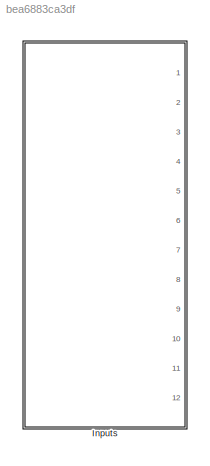
MODEL slx_bea6883ca3df
KIND model
CONFIG AbsTol = auto
CONFIG EnableMultiTasking = off
CONFIG FixedStep = 0.01
CONFIG MaxStep = auto
CONFIG MinStep = auto
CONFIG RelTol = 1e-3
CONFIG SampleTimeConstraint = Unconstrained
CONFIG Solver = FixedStepAuto
CONFIG SolverName = FixedStepAuto
CONFIG StartTime = 0
CONFIG StopTime = 300
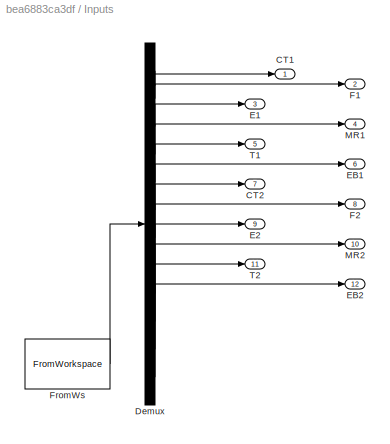
BLOCK [SubSystem] Inputs
  ClipboardFcn = sigbuilder_block('clipboard');
  CloseFcn = sigbuilder_block('close');
  ContinueFcn = sigbuilder_block('continue');
  CopyFcn = sigbuilder_block('copy');
  DeleteFcn = sigbuilder_block('delete');
  LoadFcn = sigbuilder_block('load');
  MaskHideContents = on
  ModelCloseFcn = sigbuilder_block('modelClose');
  NameChangeFcn = sigbuilder_block('namechange');
  OpenFcn = sigbuilder_block('open',[276.75 163.5 675.75 486.75 ]);
  PauseFcn = sigbuilder_block('pause');
  Ports = [0, 12]
  PreSaveFcn = sigbuilder_block('preSave');
  RequestExecContextInheritance = off
  StartFcn = sigbuilder_block('start');
  StopFcn = sigbuilder_block('stop');
  Tag = STV Subsys
BLOCK [Outport] Inputs/CT1
  IconDisplay = Port number
  Tag = STV Outport
BLOCK [Outport] Inputs/CT2
  IconDisplay = Port number
  Port = 7
  Tag = STV Outport
BLOCK [Demux] Inputs/Demux
  Outputs = 12
  Ports = [1, 12]
  Tag = STV Demux
BLOCK [Outport] Inputs/E1
  IconDisplay = Port number
  Port = 3
  Tag = STV Outport
BLOCK [Outport] Inputs/E2
  IconDisplay = Port number
  Port = 9
  Tag = STV Outport
BLOCK [Outport] Inputs/EB1
  IconDisplay = Port number
  Port = 6
  Tag = STV Outport
BLOCK [Outport] Inputs/EB2
  IconDisplay = Port number
  Port = 12
  Tag = STV Outport
BLOCK [Outport] Inputs/F1
  IconDisplay = Port number
  Port = 2
  Tag = STV Outport
BLOCK [Outport] Inputs/F2
  IconDisplay = Port number
  Port = 8
  Tag = STV Outport
BLOCK [FromWorkspace] Inputs/FromWs
  SampleTime = 0
  Tag = STV FromWs
  VariableName = tuvar
BLOCK [Outport] Inputs/MR1
  IconDisplay = Port number
  Port = 4
  Tag = STV Outport
BLOCK [Outport] Inputs/MR2
  IconDisplay = Port number
  Port = 10
  Tag = STV Outport
BLOCK [Outport] Inputs/T1
  IconDisplay = Port number
  Port = 5
  Tag = STV Outport
BLOCK [Outport] Inputs/T2
  IconDisplay = Port number
  Port = 11
  Tag = STV Outport
LINE Inputs/Demux:1 -> Inputs/CT1:1
LINE Inputs/Demux:10 -> Inputs/MR2:1
LINE Inputs/Demux:11 -> Inputs/T2:1
LINE Inputs/Demux:12 -> Inputs/EB2:1
LINE Inputs/Demux:2 -> Inputs/F1:1
LINE Inputs/Demux:3 -> Inputs/E1:1
LINE Inputs/Demux:4 -> Inputs/MR1:1
LINE Inputs/Demux:5 -> Inputs/T1:1
LINE Inputs/Demux:6 -> Inputs/EB1:1
LINE Inputs/Demux:7 -> Inputs/CT2:1
LINE Inputs/Demux:8 -> Inputs/F2:1
LINE Inputs/Demux:9 -> Inputs/E2:1
LINE Inputs/FromWs:1 -> Inputs/Demux:1
